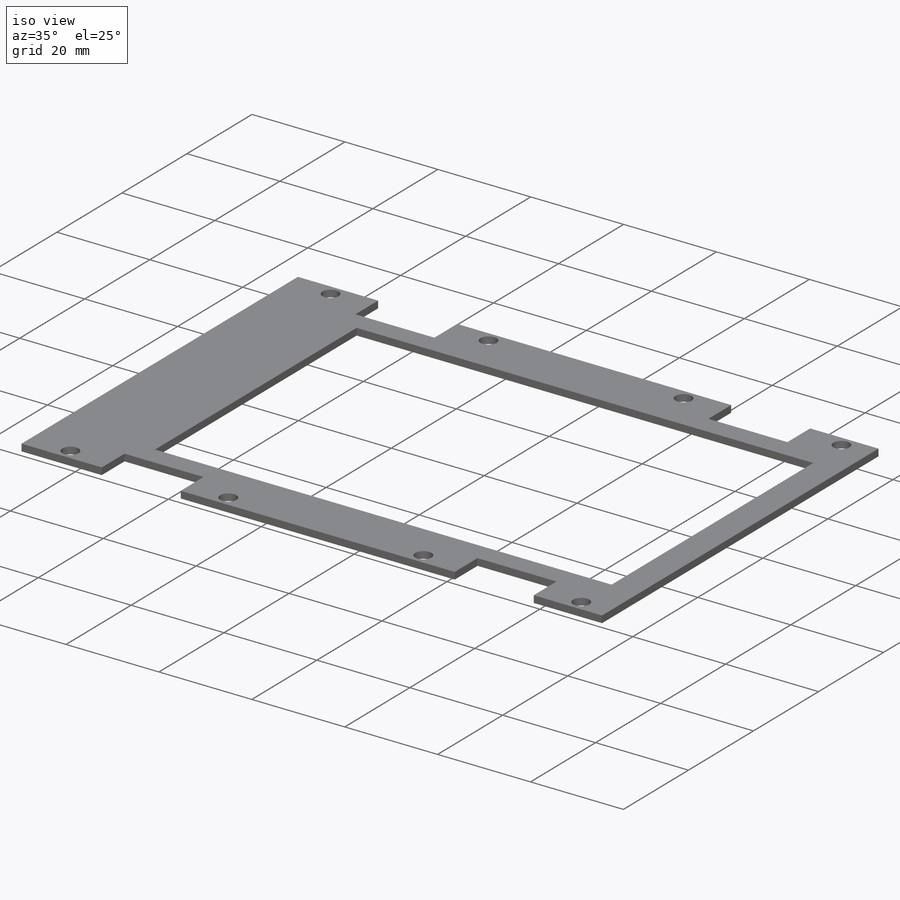
[diagram: iso view]
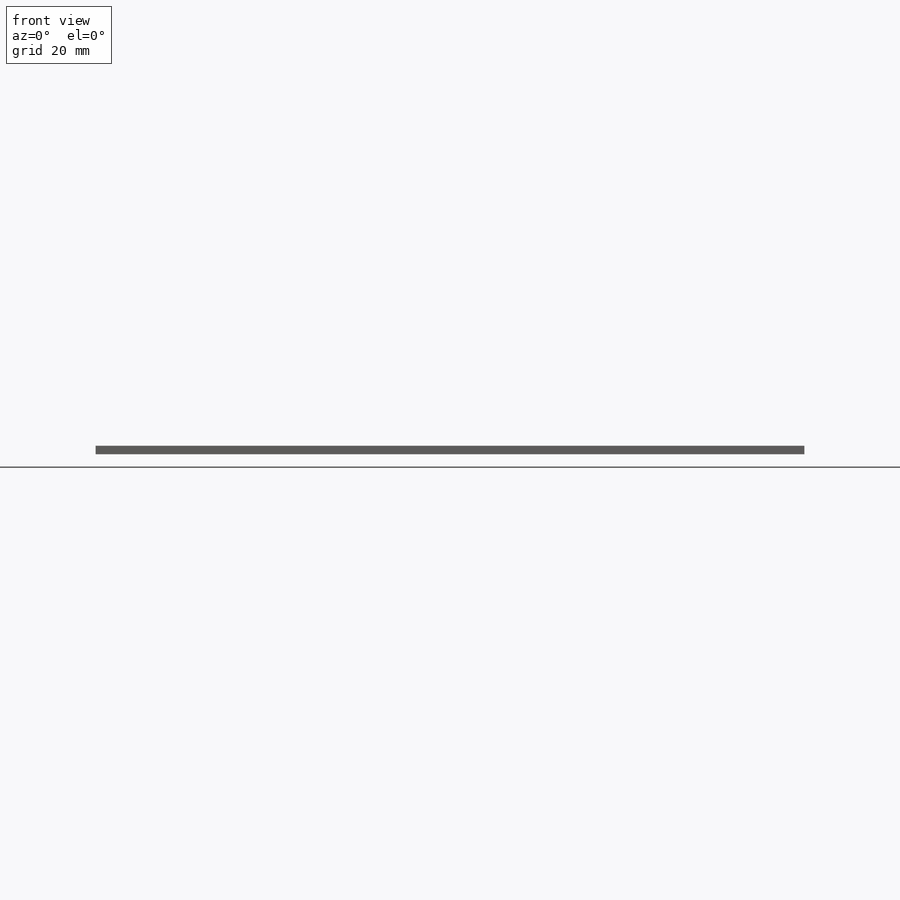
[diagram: front view]
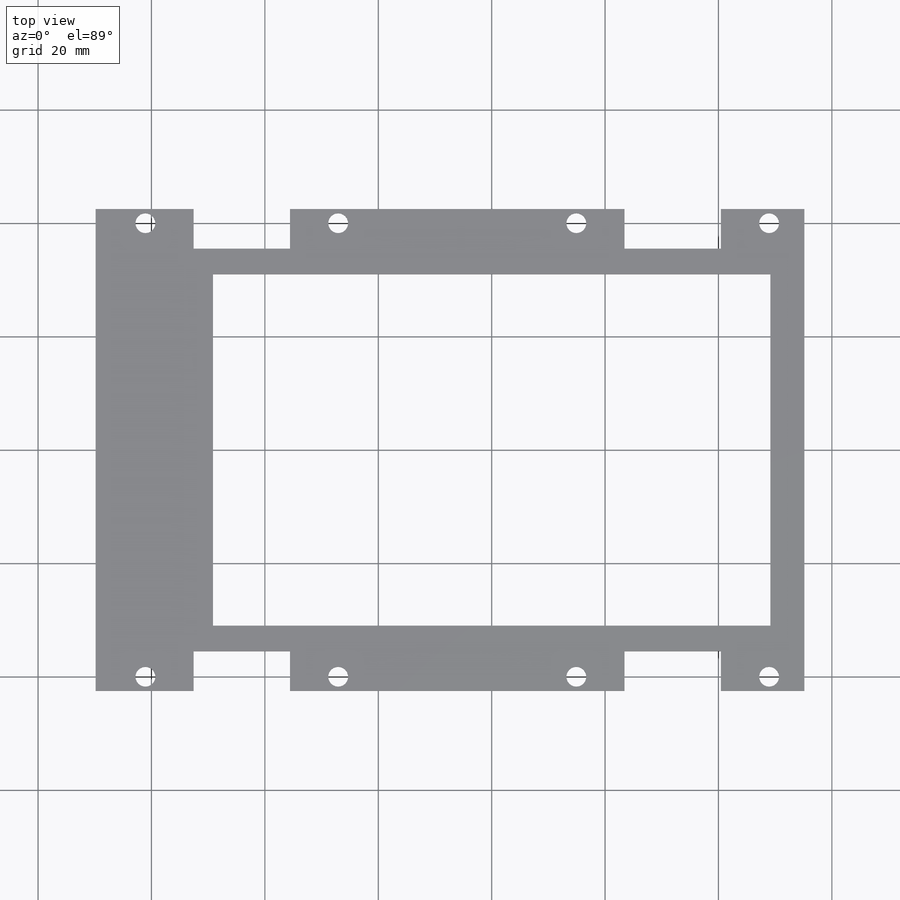
[diagram: top view]
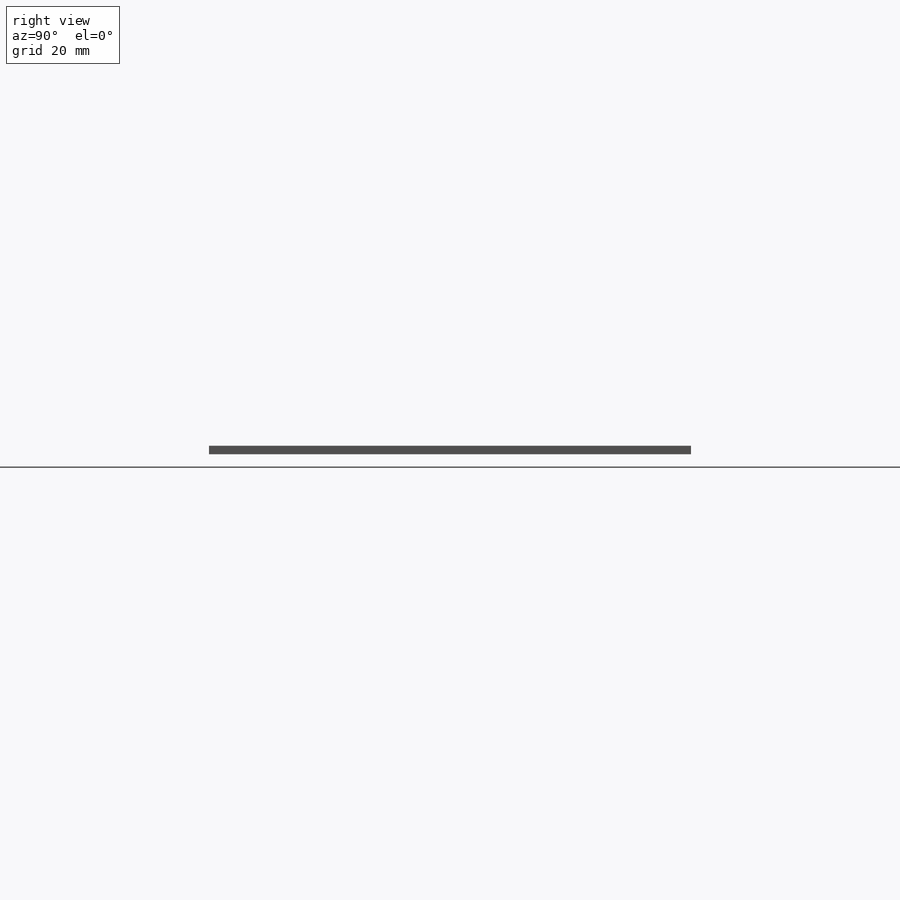
[diagram: right view]
SOLIDWORKS PART (.sldprt)
format: sldprt  version: not decoded by parser v0  size: 273,408 bytes
history: native  units: mm
features: sketch x5, cut_extrude x4, material x1, extrude x1, plane x1 (+12 scaffold rows collapsed)
feature tree (24):
  scaffold x12  (default folders/planes/origin — collapsed)
  material  "재질 <지정안함>"
  sketch  "스케치1"  dims[c1.D1=125.0mm c1.D2=85.0mm c1.D3=59.15mm c1.D4=42.5mm c1.D5=65.85mm c2.D3=55.15mm]
  extrude  "보스-돌출1"  Depth=1.5mm
  sketch  "스케치2"  dims[D1=98.3mm D2=62.0mm D3=49.15mm D4=31.0mm]
  cut_extrude  "컷-돌출1"  Depth=1.5mm
  plane  "평면1"
  sketch  "스케치4"  dims[c1.D5=~0.286528mm c1.D1=55.0mm c1.D2=55.0mm c1.D3=40.0mm c1.D4=40.0mm c2.D5=63.78mm c2.D1=55.0mm c2.D2=55.0mm]
  cut_extrude  "컷-돌출2"  Depth=10mm
  sketch  "스케치5"  dims[D3=~0.409759mm D1=34.0mm D2=34.0mm]
  cut_extrude  "컷-돌출3"  Depth=10mm
  sketch  "스케치6"  dims[D1=17.0mm D2=17.0mm D3=9.0mm D4=17.0mm D5=17.0mm D6=9.0mm D7=17.0mm D8=9.0mm D9=17.0mm D10=9.0mm D11=4.5mm D12=8.5mm D13=4.5mm D14=8.5mm D15=4.5mm D16=8.5mm D17=8.5mm D18=4.5mm]
  cut_extrude  "컷-돌출4"  Depth=10mm
decode coverage: 10 of 10 modeling features carry decoded parameters
note: ~ marks probable driven/reference dimensions
note: suppression state not decoded; provenance and decode notes live in map.json
